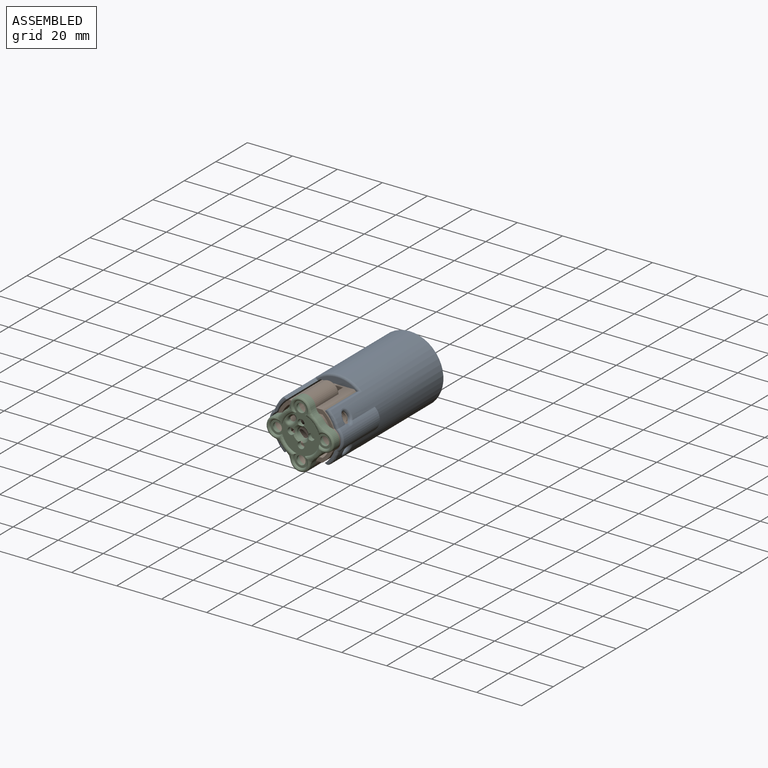
[diagram: assembled view]
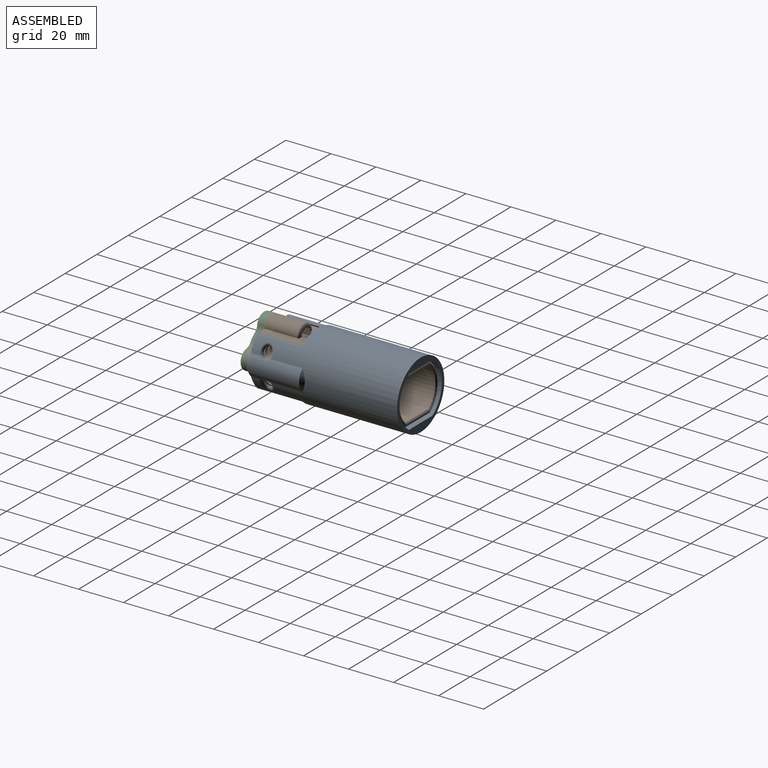
[diagram: assembled view, second angle]
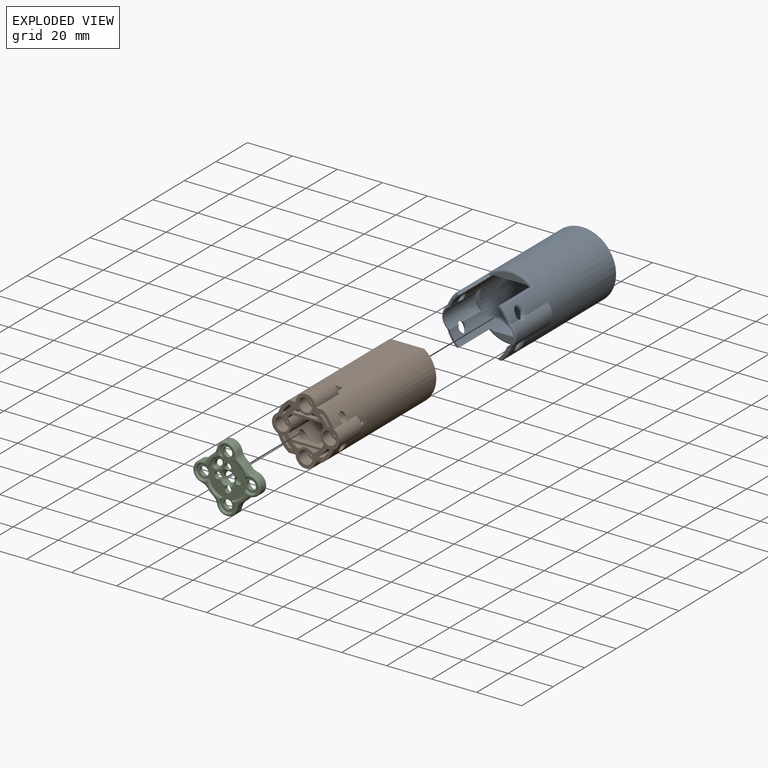
[diagram: exploded view]
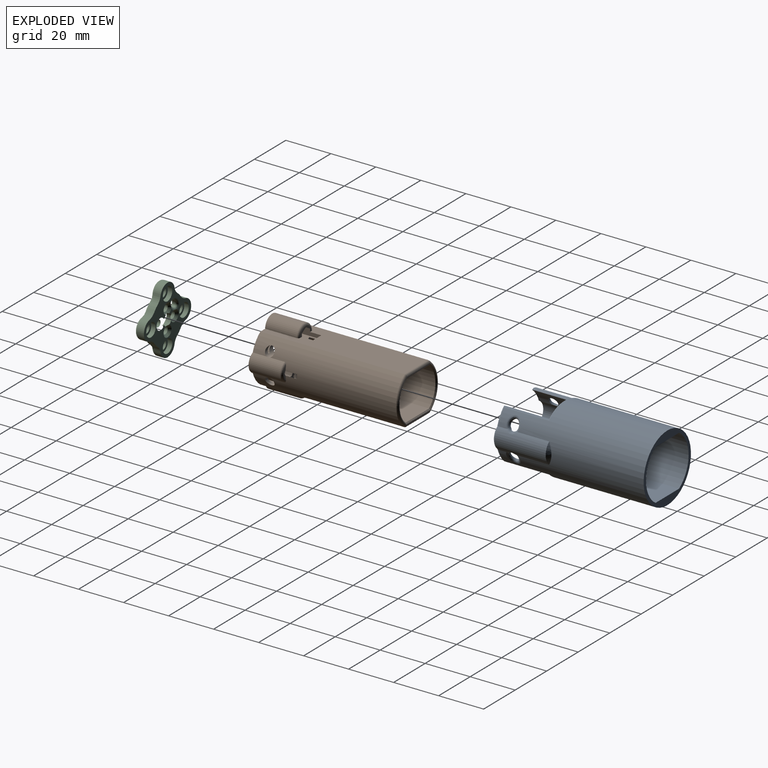
[diagram: exploded view, second angle]
ASSEMBLY  parts=3 mates=2
PART A: 48 faces, bbox 34x66x32.5 mm
  f0: plane 6.65x4.91mm, normal (0,-1,0), area 3.9mm2, adj f4,f6,f24,f34
  f1: plane 6.65x4.91mm, normal (0,-1,0), area 3.9mm2, adj f3,f5,f23,f33
  f2: cylinder r=15mm len=65mm, axis (0,-1,0), area 4638.3mm2, adj f7,f8,f15,f26,f27,f28,f29,f30
  f3: cylinder r=5mm len=20mm, axis (0,-1,0), area 218.1mm2, adj f1,f5,f9,f17,f18,f19,f31
  f4: cylinder r=5mm len=20mm, axis (0,-1,0), area 218.1mm2, adj f0,f6,f12,f16,f20,f21,f36
  f5: cylinder r=13.5mm len=66mm, axis (0,-1,0), area 1491.9mm2, adj f1,f3,f9,f10,f11,f13,f14,f15
  f6: cylinder r=13.5mm len=66mm, axis (0,-1,0), area 1491.9mm2, adj f0,f4,f10,f11,f12,f13,f14,f15
  f7: cylinder r=6mm len=22.5mm, axis (0,-1,0), area 232.7mm2, adj f2,f27,f36,f40,f41,f44,f45
  f8: cylinder r=6mm len=22.5mm, axis (0,-1,0), area 232.7mm2, adj f2,f26,f31,f42,f43,f46,f47
  f9: plane 8.94x2.76mm, normal (0,-1,0), area 13.1mm2, adj f3,f5
  f10: plane 17.99x3.5mm, normal (0,-1,0), area 32.6mm2, adj f5,f6,f13,f22,f23,f37
  f11: plane 17.99x3.5mm, normal (0,-1,0), area 32.6mm2, adj f5,f6,f14,f24,f25,f30
  f12: plane 8.94x2.76mm, normal (0,-1,0), area 13.1mm2, adj f4,f6
  f13: plane 46x15mm, normal (0,0,-1), area 690mm2, adj f5,f6,f10,f15
  f14: plane 46x15mm, normal (0,0,1), area 690mm2, adj f5,f6,f11,f15
  f15: plane 30x30mm, normal (0,1,0), area 180.6mm2, adj f2,f5,f6,f13,f14
  f16: plane 6.65x4.91mm, normal (0,-1,0), area 3.9mm2, adj f4,f6,f22,f38
  f17: plane 6.65x4.91mm, normal (0,-1,0), area 3.9mm2, adj f3,f5,f25,f29
  f18: cylinder r=2mm len=4mm, axis (-1,0,0), area 5.1mm2, adj f3,f5,f46,f47
  f19: cylinder r=2mm len=4mm, axis (-1,0,0), area 5.1mm2, adj f3,f5,f42,f43
  f20: cylinder r=2mm len=4mm, axis (-1,0,0), area 5.1mm2, adj f4,f6,f44,f45
  f21: cylinder r=2mm len=4mm, axis (-1,0,0), area 5.1mm2, adj f4,f6,f40,f41
  f22: plane 20.09x0.92mm, normal (-0.41,0,0.91), area 20mm2, adj f6,f10,f16,f37,f38,f39
  f23: plane 20.09x0.92mm, normal (0.41,0,0.91), area 20mm2, adj f1,f5,f10,f33,f35,f37
  f24: plane 20.09x0.92mm, normal (-0.41,0,-0.91), area 20mm2, adj f0,f6,f11,f30,f32,f34
  f25: plane 20.09x0.92mm, normal (0.41,0,-0.91), area 20mm2, adj f5,f11,f17,f28,f29,f30
  f26: cone r=6mm half-angle=45deg, axis (0,-1,0), area 10.4mm2, adj f2,f8
  f27: cone r=6mm half-angle=45deg, axis (0,-1,0), area 10.4mm2, adj f2,f7
  f28: cylinder r=1mm len=20.92mm, axis (0,-1,0), area 23.9mm2, adj f2,f25,f29,f30
  f29: torus R=14mm, axis (0,-1,0), area 12.2mm2, adj f2,f17,f25,f28,f31
  f30: torus R=14mm, axis (0,-1,0), area 33.7mm2, adj f2,f11,f24,f25,f28,f32
  f31: torus R=5mm, axis (0,-1,0), area 16.4mm2, adj f3,f8,f29,f33
  f32: cylinder r=1mm len=20.92mm, axis (0,-1,0), area 23.9mm2, adj f2,f24,f30,f34
  f33: torus R=14mm, axis (0,-1,0), area 12.2mm2, adj f1,f2,f23,f31,f35
  f34: torus R=14mm, axis (0,-1,0), area 12.2mm2, adj f0,f2,f24,f32,f36
  f35: cylinder r=1mm len=20.92mm, axis (0,-1,0), area 23.9mm2, adj f2,f23,f33,f37
  f36: torus R=5mm, axis (0,-1,0), area 16.4mm2, adj f4,f7,f34,f38
  f37: torus R=14mm, axis (0,-1,0), area 33.7mm2, adj f2,f10,f22,f23,f35,f39
  f38: torus R=14mm, axis (0,-1,0), area 12.2mm2, adj f2,f16,f22,f36,f39
  f39: cylinder r=1mm len=20.92mm, axis (0,-1,0), area 23.9mm2, adj f2,f22,f37,f38
  f40: bspline ~5x2.34mm, area 4.7mm2, adj f7,f21,f41
  f41: bspline ~6.01x5.71mm, area 21.3mm2, adj f2,f6,f7,f21,f40
  f42: bspline ~5x2.34mm, area 4.7mm2, adj f8,f19,f43
  f43: bspline ~6.01x5.71mm, area 21.3mm2, adj f2,f5,f8,f19,f42
  f44: bspline ~5x2.34mm, area 4.7mm2, adj f7,f20,f45
  f45: bspline ~6.01x5.72mm, area 21.3mm2, adj f2,f6,f7,f20,f44
  f46: bspline ~5x2.34mm, area 4.7mm2, adj f8,f18,f47
  f47: bspline ~6.01x5.72mm, area 21.3mm2, adj f2,f5,f8,f18,f46
PART B: 106 faces, bbox 30.8x65x30.8 mm
  f0: plane 15.37x0.4mm, normal (0,1,0), area 6mm2, adj f94,f95,f97,f105
  f1: cylinder r=11.5mm len=64.5mm, axis (0,-1,0), area 1083.6mm2, adj f5,f6,f7,f8,f31,f32,f35,f44
  f2: cylinder r=13mm len=64mm, axis (0,-1,0), area 1428.1mm2, adj f14,f29,f33,f34,f44,f71,f72,f73
  f3: cylinder r=11.5mm len=64.5mm, axis (0,-1,0), area 1083.6mm2, adj f11,f12,f15,f16,f31,f32,f35,f44
  f4: cylinder r=13mm len=64mm, axis (0,-1,0), area 1428.1mm2, adj f13,f30,f33,f34,f44,f55,f56,f57
  f5: cylinder r=4.5mm len=6.81mm, axis (0,-1,0), area 7.1mm2, adj f1,f25,f35,f92
  f6: cylinder r=4.5mm len=5.81mm, axis (0,-1,0), area 6.1mm2, adj f1,f25,f44,f92
  f7: cylinder r=4.5mm len=6.81mm, axis (0,-1,0), area 7.1mm2, adj f1,f9,f35,f93
  f8: cylinder r=4.5mm len=5.81mm, axis (0,-1,0), area 6.1mm2, adj f1,f9,f44,f93
  f9: cylinder r=10.5mm len=15mm, axis (0,-1,0), area 71.4mm2, adj f7,f8,f32,f35,f44,f93
  f10: cylinder r=10.5mm len=15mm, axis (0,-1,0), area 71.4mm2, adj f11,f12,f32,f35,f44,f93
  f11: cylinder r=4.5mm len=6.81mm, axis (0,-1,0), area 7.1mm2, adj f3,f10,f35,f93
  f12: cylinder r=4.5mm len=5.81mm, axis (0,-1,0), area 6.1mm2, adj f3,f10,f44,f93
  f13: cylinder r=4.5mm len=14mm, axis (0,-1,0), area 144.6mm2, adj f4,f44,f92,f93,f98
  f14: cylinder r=4.5mm len=14mm, axis (0,-1,0), area 144.6mm2, adj f2,f44,f92,f93,f100
  f15: cylinder r=4.5mm len=6.81mm, axis (0,-1,0), area 7.1mm2, adj f3,f17,f35,f92
  f16: cylinder r=4.5mm len=5.81mm, axis (0,-1,0), area 6.1mm2, adj f3,f17,f44,f92
  f17: cylinder r=10.5mm len=15mm, axis (0,-1,0), area 71.4mm2, adj f15,f16,f31,f35,f44,f92
  f18: cylinder r=8.5mm len=15mm, axis (0,-1,0), area 84.7mm2, adj f19,f20,f35,f42,f44,f86,f87,f88
  f19: cylinder r=4mm len=7.47mm, axis (0,-1,0), area 44.3mm2, adj f18,f21,f35,f93
  f20: cylinder r=4mm len=6.47mm, axis (0,-1,0), area 37.3mm2, adj f18,f21,f44,f93
  f21: cylinder r=8.5mm len=15mm, axis (0,-1,0), area 84.7mm2, adj f19,f20,f35,f43,f44,f86,f87,f88
  f22: cylinder r=8.5mm len=15mm, axis (0,-1,0), area 84.7mm2, adj f23,f24,f35,f43,f44,f89,f90,f91
  f23: cylinder r=4mm len=7.47mm, axis (0,-1,0), area 44.3mm2, adj f22,f26,f35,f92
  f24: cylinder r=4mm len=6.47mm, axis (0,-1,0), area 37.3mm2, adj f22,f26,f44,f92
  f25: cylinder r=10.5mm len=15mm, axis (0,-1,0), area 71.4mm2, adj f5,f6,f31,f35,f44,f92
  f26: cylinder r=8.5mm len=15mm, axis (0,-1,0), area 84.7mm2, adj f23,f24,f35,f42,f44,f89,f90,f91
  f27: plane 7x3.38mm, normal (0,1,0), area 7.3mm2, adj f33,f78,f79,f81,f82,f99
  f28: plane 7x3.38mm, normal (0,1,0), area 7.3mm2, adj f34,f62,f63,f65,f66,f101
  f29: plane 5.42x1.29mm, normal (0,1,0), area 3.4mm2, adj f2,f71,f72,f100
  f30: plane 5.42x1.29mm, normal (0,1,0), area 3.4mm2, adj f4,f55,f56,f98
  f31: plane 64.5x15mm, normal (0,0,1), area 770.8mm2, adj f1,f3,f17,f25,f35,f44,f83,f84
  f32: plane 64.5x15mm, normal (0,0,-1), area 770.8mm2, adj f1,f3,f9,f10,f35,f44,f67,f68
  f33: plane 64.02x15.02mm, normal (0,0,-1), area 799.5mm2, adj f2,f4,f27,f40,f44,f81,f82,f83
  f34: plane 64.02x15.02mm, normal (0,0,1), area 799.5mm2, adj f2,f4,f28,f41,f44,f65,f66,f67
  f35: plane 22.41x17.44mm, normal (0,1,0), area 105.3mm2, adj f1,f3,f5,f7,f9,f10,f11,f15
  f36: cylinder r=2mm len=5mm, axis (0,-1,0), area 62.8mm2, adj f50,f80
  f37: cylinder r=2mm len=5mm, axis (0,-1,0), area 62.8mm2, adj f46,f64
  f38: cylinder r=2mm len=5mm, axis (0,-1,0), area 62.8mm2, adj f48,f54
  f39: cylinder r=2mm len=5mm, axis (0,-1,0), area 62.8mm2, adj f52,f70
  f40: cylinder r=4.5mm len=14mm, axis (0,-1,0), area 194.6mm2, adj f33,f44,f99
  f41: cylinder r=4.5mm len=14mm, axis (0,-1,0), area 194.6mm2, adj f34,f44,f101
  f42: cylinder r=4mm len=15mm, axis (0,-1,0), area 104.7mm2, adj f18,f26,f35,f44
  f43: cylinder r=4mm len=15mm, axis (0,-1,0), area 104.7mm2, adj f21,f22,f35,f44
  f44: plane 30x30mm, normal (0,-1,0), area 265.7mm2, adj f1,f2,f3,f4,f6,f8,f9,f10
  f45: cylinder r=3mm len=6mm, axis (0,-1,0), area 94.2mm2, adj f44,f46
  f46: plane 6x6mm, normal (0,-1,0), area 15.7mm2, adj f37,f45
  f47: cylinder r=3mm len=6mm, axis (0,-1,0), area 94.2mm2, adj f44,f48
  f48: plane 6x6mm, normal (0,-1,0), area 15.7mm2, adj f38,f47
  f49: cylinder r=3mm len=6mm, axis (0,-1,0), area 94.2mm2, adj f44,f50
  f50: plane 6x6mm, normal (0,-1,0), area 15.7mm2, adj f36,f49
  f51: cylinder r=3mm len=6mm, axis (0,-1,0), area 94.2mm2, adj f44,f52
  f52: plane 6x6mm, normal (0,-1,0), area 15.7mm2, adj f39,f51
  f53: plane 15.37x0.4mm, normal (0,1,0), area 6mm2, adj f94,f96,f97,f102
  f54: plane 6x5.2mm, normal (0,1,0), area 10.8mm2, adj f38,f55,f56,f58,f59,f60,f61
  f55: plane 10x2.6mm, normal (0.87,0,-0.5), area 24.7mm2, adj f4,f30,f54,f56,f57,f59
  f56: plane 10x2.6mm, normal (0.87,0,0.5), area 24.7mm2, adj f4,f30,f54,f55,f57,f60
  f57: plane 5.2x1.8mm, normal (0,-1,0), area 6.6mm2, adj f3,f4,f55,f56,f59,f60
  f58: plane 5x2.6mm, normal (-0.87,0,-0.5), area 15mm2, adj f35,f54,f59,f61
  f59: plane 10x3mm, normal (0,0,-1), area 19mm2, adj f3,f35,f54,f55,f57,f58
  f60: plane 10x3mm, normal (0,0,1), area 19mm2, adj f3,f35,f54,f56,f57,f61
  f61: plane 5x2.6mm, normal (-0.87,0,0.5), area 15mm2, adj f35,f54,f58,f60
  f62: plane 5x2.6mm, normal (-0.5,0,-0.87), area 15mm2, adj f28,f63,f64,f65
  f63: plane 5x2.6mm, normal (0.5,0,-0.87), area 15mm2, adj f28,f62,f64,f66
  f64: plane 6x5.2mm, normal (0,1,0), area 10.8mm2, adj f37,f62,f63,f65,f66,f68,f69
  f65: plane 10x3mm, normal (-1,0,0), area 23.1mm2, adj f28,f34,f62,f64,f67,f68
  f66: plane 10x3mm, normal (1,0,0), area 23.1mm2, adj f28,f34,f63,f64,f67,f69
  f67: plane 5.2x1.9mm, normal (0,-1,0), area 9.7mm2, adj f32,f34,f65,f66,f68,f69
  f68: plane 10x2.6mm, normal (-0.5,0,0.87), area 17.8mm2, adj f32,f35,f64,f65,f67,f69
  f69: plane 10x2.6mm, normal (0.5,0,0.87), area 17.8mm2, adj f32,f35,f64,f66,f67,f68
  f70: plane 6x5.2mm, normal (0,1,0), area 10.8mm2, adj f39,f71,f72,f74,f75,f76,f77
  f71: plane 10x2.6mm, normal (-0.87,0,0.5), area 24.7mm2, adj f2,f29,f70,f72,f73,f77
  f72: plane 10x2.6mm, normal (-0.87,0,-0.5), area 24.7mm2, adj f2,f29,f70,f71,f73,f74
  f73: plane 5.2x1.8mm, normal (0,-1,0), area 6.6mm2, adj f1,f2,f71,f72,f74,f77
  f74: plane 10x3mm, normal (0,0,-1), area 19mm2, adj f1,f35,f70,f72,f73,f75
  f75: plane 5x2.6mm, normal (0.87,0,-0.5), area 15mm2, adj f35,f70,f74,f76
  f76: plane 5x2.6mm, normal (0.87,0,0.5), area 15mm2, adj f35,f70,f75,f77
  f77: plane 10x3mm, normal (0,0,1), area 19mm2, adj f1,f35,f70,f71,f73,f76
  f78: plane 5x2.6mm, normal (0.5,0,0.87), area 15mm2, adj f27,f79,f80,f81
  f79: plane 5x2.6mm, normal (-0.5,0,0.87), area 15mm2, adj f27,f78,f80,f82
  f80: plane 6x5.2mm, normal (0,1,0), area 10.8mm2, adj f36,f78,f79,f81,f82,f84,f85
  f81: plane 10x3mm, normal (1,0,0), area 23.1mm2, adj f27,f33,f78,f80,f83,f84
  f82: plane 10x3mm, normal (-1,0,0), area 23.1mm2, adj f27,f33,f79,f80,f83,f85
  f83: plane 5.2x1.9mm, normal (0,-1,0), area 9.7mm2, adj f31,f33,f81,f82,f84,f85
  f84: plane 10x2.6mm, normal (0.5,0,-0.87), area 17.8mm2, adj f31,f35,f80,f81,f83,f85
  f85: plane 10x2.6mm, normal (-0.5,0,-0.87), area 17.8mm2, adj f31,f35,f80,f82,f83,f84
  f86: plane 13.75x1mm, normal (0,1,0), area 12.9mm2, adj f18,f21,f87,f88
  f87: plane 13.75x2mm, normal (0,0,-1), area 27.5mm2, adj f18,f21,f44,f86
  f88: plane 12.04x2mm, normal (0,0,1), area 24.1mm2, adj f18,f21,f44,f86
  f89: plane 13.75x1mm, normal (0,1,0), area 12.9mm2, adj f22,f26,f90,f91
  f90: plane 12.04x2mm, normal (0,0,-1), area 24.1mm2, adj f22,f26,f44,f89
  f91: plane 13.75x2mm, normal (0,0,1), area 27.5mm2, adj f22,f26,f44,f89
  f92: cylinder r=2mm len=25.12mm, axis (-1,0,0), area 146.8mm2, adj f1,f2,f3,f4,f5,f6,f13,f14
  f93: cylinder r=2mm len=25.12mm, axis (-1,0,0), area 146.8mm2, adj f1,f2,f3,f4,f7,f8,f9,f10
  f94: torus R=12mm, axis (0,-1,0), area 37.6mm2, adj f0,f2,f53,f95,f96,f103
  f95: cylinder r=1mm len=15mm, axis (1,0,0), area 23.2mm2, adj f0,f34,f94,f97
  f96: cylinder r=1mm len=15mm, axis (-1,0,0), area 23.2mm2, adj f33,f53,f94,f97
  f97: torus R=12mm, axis (0,-1,0), area 37.6mm2, adj f0,f4,f53,f95,f96,f104
  f98: torus R=3.5mm, axis (0,-1,0), area 13.9mm2, adj f4,f13,f30
  f99: torus R=3.5mm, axis (0,-1,0), area 20mm2, adj f27,f33,f40
  f100: torus R=3.5mm, axis (0,-1,0), area 13.9mm2, adj f2,f14,f29
  f101: torus R=3.5mm, axis (0,-1,0), area 20mm2, adj f28,f34,f41
  f102: plane 15.37x0.5mm, normal (0,0.71,0.71), area 10.7mm2, adj f31,f53,f103,f104
  f103: cone r=12mm half-angle=45deg, axis (0,1,0), area 14.4mm2, adj f1,f94,f102,f105
  f104: cone r=12mm half-angle=45deg, axis (0,1,0), area 14.4mm2, adj f3,f97,f102,f105
  f105: plane 15.37x0.5mm, normal (0,0.71,-0.71), area 10.7mm2, adj f0,f32,f103,f104
PART C: 81 faces, bbox 31x4x31 mm
  f0: plane 30x30mm, normal (0,1,0), area 259.3mm2, adj f6,f7,f8,f9,f10,f11,f12,f18
  f1: plane 5.3x5.3mm, normal (0,-1,0), area 0.8mm2, adj f50,f51,f54,f55
  f2: plane 5.3x5.3mm, normal (0,-1,0), area 0.8mm2, adj f41,f45,f46,f51
  f3: plane 5.3x5.3mm, normal (0,-1,0), area 0.8mm2, adj f48,f49,f53,f54
  f4: plane 2.65x2.57mm, normal (0,1,0), area 2.6mm2, adj f18,f60,f61,f78
  f5: plane 27x27mm, normal (0,-1,0), area 192.4mm2, adj f13,f14,f16,f17,f19,f20,f21,f23
  f6: cylinder r=10.5mm len=3.05mm, axis (0,1,0), area 9mm2, adj f0,f53,f72,f74
  f7: cylinder r=4.5mm len=8.82mm, axis (0,1,0), area 37.6mm2, adj f0,f56,f74,f76
  f8: cylinder r=10.5mm len=3.05mm, axis (0,1,0), area 9mm2, adj f0,f55,f64,f76
  f9: cylinder r=4.5mm len=8.82mm, axis (0,1,0), area 37.6mm2, adj f0,f52,f64,f66
  f10: cylinder r=10.5mm len=3.05mm, axis (0,1,0), area 9mm2, adj f0,f46,f66,f68
  f11: cylinder r=4.5mm len=8.82mm, axis (0,1,0), area 37.6mm2, adj f0,f42,f62,f68
  f12: cylinder r=10.5mm len=3.05mm, axis (0,1,0), area 9mm2, adj f0,f43,f62,f70
  f13: cylinder r=2mm len=4mm, axis (0,1,0), area 12.6mm2, adj f5,f38
  f14: cylinder r=2mm len=4mm, axis (0,1,0), area 12.6mm2, adj f5,f40
  f15: extruded ~3.64x3.59mm, area 11.2mm2, adj f78,f79,f80
  f16: cylinder r=1.5mm len=3mm, axis (0,1,0), area 18.8mm2, adj f5,f57,f60
  f17: cylinder r=1.5mm len=3mm, axis (0,1,0), area 18.3mm2, adj f5,f57,f58
  f18: cylinder r=2.5mm len=5mm, axis (0,1,0), area 31.4mm2, adj f0,f4,f57,f58,f59,f60,f61
  f19: cylinder r=1.5mm len=3mm, axis (0,1,0), area 18.8mm2, adj f5,f57,f59
  f20: cylinder r=1.5mm len=3mm, axis (0,1,0), area 18.2mm2, adj f5,f57,f61
  f21: cylinder r=2mm len=4mm, axis (0,1,0), area 12.6mm2, adj f5,f34
  f22: cylinder r=4.5mm len=8.82mm, axis (0,1,0), area 37.6mm2, adj f0,f47,f70,f72
  f23: cylinder r=2mm len=4mm, axis (0,1,0), area 12.6mm2, adj f5,f36
  f24: cylinder r=3mm len=6mm, axis (0,1,0), area 0.7mm2, adj f5,f25,f31,f41
  f25: cylinder r=8.5mm len=6.26mm, axis (0,1,0), area 0.5mm2, adj f5,f24,f26,f45,f80
  f26: cylinder r=3mm len=6mm, axis (0,1,0), area 0.7mm2, adj f5,f25,f27,f51
  f27: cylinder r=8.5mm len=6.26mm, axis (0,1,0), area 0.5mm2, adj f5,f26,f28,f50
  f28: cylinder r=3mm len=6mm, axis (0,1,0), area 0.7mm2, adj f5,f27,f29,f54
  f29: cylinder r=8.5mm len=6.26mm, axis (0,1,0), area 0.5mm2, adj f5,f28,f30,f49
  f30: cylinder r=3mm len=6mm, axis (0,1,0), area 0.7mm2, adj f5,f29,f31,f48
  f31: cylinder r=8.5mm len=6.26mm, axis (0,1,0), area 0.5mm2, adj f5,f24,f30,f44
  f32: plane 5.3x5.3mm, normal (0,-1,0), area 0.8mm2, adj f41,f43,f44,f48
  f33: cylinder r=3mm len=6mm, axis (0,1,0), area 37.7mm2, adj f0,f34
  f34: plane 6x6mm, normal (0,1,0), area 15.7mm2, adj f21,f33
  f35: cylinder r=3mm len=6mm, axis (0,1,0), area 37.7mm2, adj f0,f36
  f36: plane 6x6mm, normal (0,1,0), area 15.7mm2, adj f23,f35
  f37: cylinder r=3mm len=6mm, axis (0,1,0), area 37.7mm2, adj f0,f38
  f38: plane 6x6mm, normal (0,1,0), area 15.7mm2, adj f13,f37
  f39: cylinder r=3mm len=6mm, axis (0,1,0), area 37.7mm2, adj f0,f40
  f40: plane 6x6mm, normal (0,1,0), area 15.7mm2, adj f14,f39
  f41: torus R=3.95mm, axis (0,-1,0), area 19.3mm2, adj f2,f24,f32,f42,f43,f44,f45,f46
  f42: torus R=3.55mm, axis (0,-1,0), area 16.9mm2, adj f11,f41,f63,f69
  f43: torus R=9.55mm, axis (0,-1,0), area 6.6mm2, adj f12,f32,f41,f48,f63,f71
  f44: torus R=9.45mm, axis (0,-1,0), area 12.5mm2, adj f31,f32,f41,f48
  f45: torus R=9.45mm, axis (0,-1,0), area 12.5mm2, adj f2,f25,f41,f51
  f46: torus R=9.55mm, axis (0,-1,0), area 6.6mm2, adj f2,f10,f41,f51,f67,f69
  f47: torus R=3.55mm, axis (0,-1,0), area 16.9mm2, adj f22,f48,f71,f73
  f48: torus R=3.95mm, axis (0,-1,0), area 19.3mm2, adj f3,f30,f32,f43,f44,f47,f49,f53
  f49: torus R=9.45mm, axis (0,-1,0), area 12.5mm2, adj f3,f29,f48,f54
  f50: torus R=9.45mm, axis (0,-1,0), area 12.5mm2, adj f1,f27,f51,f54
  f51: torus R=3.95mm, axis (0,-1,0), area 19.3mm2, adj f1,f2,f26,f45,f46,f50,f52,f55
  f52: torus R=3.55mm, axis (0,-1,0), area 16.9mm2, adj f9,f51,f65,f67
  f53: torus R=9.55mm, axis (0,-1,0), area 6.6mm2, adj f3,f6,f48,f54,f73,f75
  f54: torus R=3.95mm, axis (0,-1,0), area 19.3mm2, adj f1,f3,f28,f49,f50,f53,f55,f56
  f55: torus R=9.55mm, axis (0,-1,0), area 6.6mm2, adj f1,f8,f51,f54,f65,f77
  f56: torus R=3.55mm, axis (0,-1,0), area 16.9mm2, adj f7,f54,f75,f77
  f57: cone r=2.5mm half-angle=45deg, axis (0,-1,0), area 23.2mm2, adj f5,f16,f17,f18,f19,f20
  f58: cone r=2.5mm half-angle=45deg, axis (0,1,0), area 16.7mm2, adj f0,f17,f18
  f59: cone r=2.5mm half-angle=45deg, axis (0,1,0), area 16.7mm2, adj f0,f18,f19
  f60: cone r=2.5mm half-angle=45deg, axis (0,1,0), area 16.7mm2, adj f0,f4,f16,f18,f78
  f61: cone r=2.5mm half-angle=45deg, axis (0,1,0), area 16.7mm2, adj f0,f4,f18,f20,f78
  f62: cylinder r=5mm len=3.05mm, axis (0,-1,0), area 11.1mm2, adj f0,f11,f12,f63
  f63: bspline ~3.09x3mm, area 4.7mm2, adj f41,f42,f43,f62
  f64: cylinder r=5mm len=3.05mm, axis (0,-1,0), area 11.1mm2, adj f0,f8,f9,f65
  f65: bspline ~3.09x3mm, area 4.7mm2, adj f51,f52,f55,f64
  f66: cylinder r=5mm len=3.05mm, axis (0,-1,0), area 11.1mm2, adj f0,f9,f10,f67
  f67: bspline ~3.09x3mm, area 4.7mm2, adj f46,f51,f52,f66
  f68: cylinder r=5mm len=3.05mm, axis (0,-1,0), area 11.1mm2, adj f0,f10,f11,f69
  f69: bspline ~3.09x3mm, area 4.7mm2, adj f41,f42,f46,f68
  f70: cylinder r=5mm len=3.05mm, axis (0,-1,0), area 11.1mm2, adj f0,f12,f22,f71
  f71: bspline ~3.09x3mm, area 4.7mm2, adj f43,f47,f48,f70
  f72: cylinder r=5mm len=3.05mm, axis (0,-1,0), area 11.1mm2, adj f0,f6,f22,f73
  f73: bspline ~3.09x3mm, area 4.7mm2, adj f47,f48,f53,f72
  f74: cylinder r=5mm len=3.05mm, axis (0,-1,0), area 11.1mm2, adj f0,f6,f7,f75
  f75: bspline ~3.09x3mm, area 4.7mm2, adj f53,f54,f56,f74
  f76: cylinder r=5mm len=3.05mm, axis (0,-1,0), area 11.1mm2, adj f0,f7,f8,f77
  f77: bspline ~3.09x3mm, area 4.7mm2, adj f54,f55,f56,f76
  f78: bspline ~5.66x5.6mm, area 21.2mm2, adj f0,f4,f15,f60,f61
  f79: bspline ~5.65x5.59mm, area 15.2mm2, adj f5,f15,f80
  f80: bspline ~3.66x3.6mm, area 5.1mm2, adj f15,f25,f79
PLACE A at identity fixed
PLACE B at identity
PLACE C at identity
MATE fastened C.f35 <-> B.f45  axis (0,1,0) through (0,0,10.5)mm
MATE slider B.f4 <-> A.f5  axis (0,-1,0) through (0,65,0)mm
